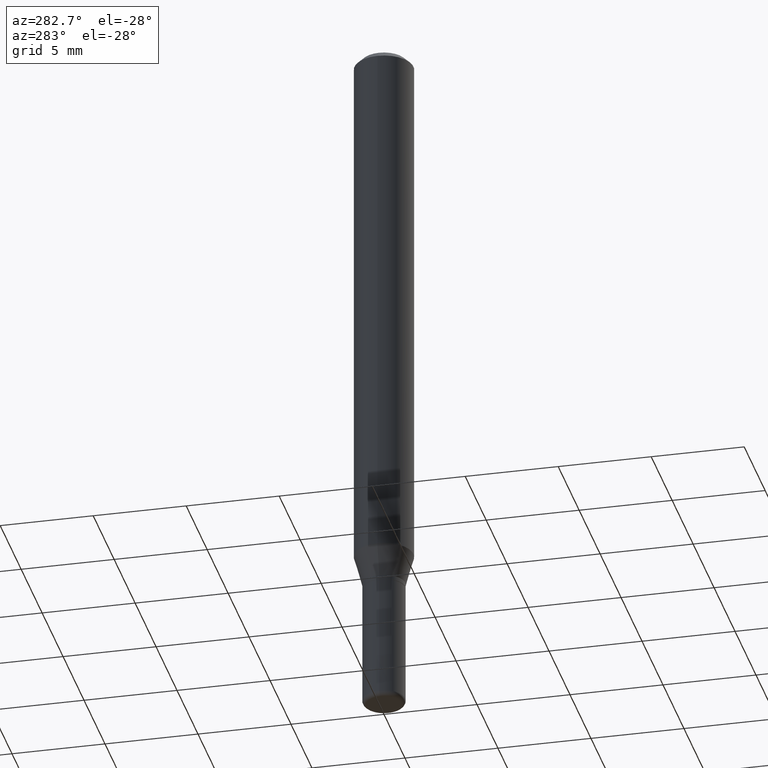
[diagram: clean part render]
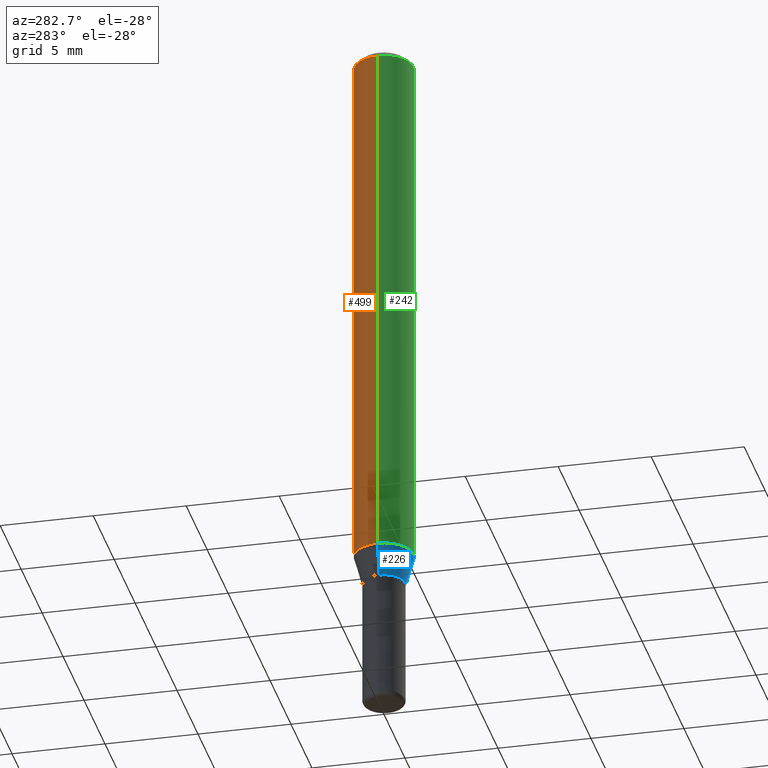
[diagram: same view with three faces highlighted in distinct colors, each labeled with its STEP entity id]
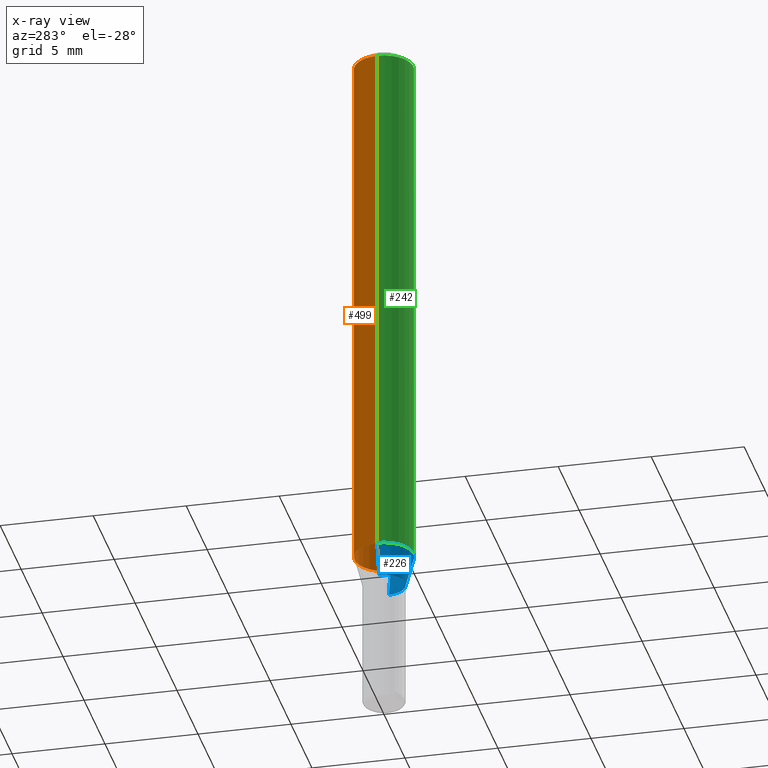
[diagram: x-ray of the same camera — body ghosted, the three highlighted faces saturated]
A machine part, auxiliary view with three faces highlighted in distinct colors.
The next image is the same camera in x-ray (body ghosted, the three faces saturated) — at least one of them is partly hidden behind the body in this view.
Their STEP definitions:

[orange] entity #499 — the highlighted cylindrical surface (edge-blend (fillet) strip) has radius 1.5875 mm, axis along (-0, 0, 1).
#22 = VECTOR ( 'NONE', #336, 39.37007874015748143 ) ;
#28 = EDGE_CURVE ( 'NONE', #52, #165, #150, .T. ) ;
#31 = DIRECTION ( 'NONE',  ( -2.445468806185136877E-29, 3.491481338843145188E-15, 1.000000000000000000 ) ) ;
#33 = ORIENTED_EDGE ( 'NONE', *, *, #28, .F. ) ;
#52 = VERTEX_POINT ( 'NONE', #235 ) ;
#55 = ORIENTED_EDGE ( 'NONE', *, *, #492, .T. ) ;
#76 = EDGE_CURVE ( 'NONE', #165, #403, #152, .T. ) ;
#77 = DIRECTION ( 'NONE',  ( 1.000000000000000000, -6.982962677686266711E-15, 0.000000000000000000 ) ) ;
#89 = EDGE_LOOP ( 'NONE', ( #55, #443, #262, #33 ) ) ;
#102 = CYLINDRICAL_SURFACE ( 'NONE', #343, 0.06250000000000000000 ) ;
#143 = DIRECTION ( 'NONE',  ( 1.000000000000000000, -6.982962677686270655E-15, 0.000000000000000000 ) ) ;
#144 = VECTOR ( 'NONE', #31, 39.37007874015748143 ) ;
#150 = LINE ( 'NONE', #465, #144 ) ;
#152 = CIRCLE ( 'NONE', #285, 0.06250000000000000000 ) ;
#165 = VERTEX_POINT ( 'NONE', #467 ) ;
#167 = CARTESIAN_POINT ( 'NONE',  ( 3.668203209277632395E-31, -5.237222008264614861E-17, -0.01499999999999970281 ) ) ;
#172 = CARTESIAN_POINT ( 'NONE',  ( -0.06250000000000000000, 4.440892098500626162E-16, -3.074334431409316114E-30 ) ) ;
#174 = VERTEX_POINT ( 'NONE', #353 ) ;
#182 = EDGE_CURVE ( 'NONE', #174, #403, #406, .T. ) ;
#235 = CARTESIAN_POINT ( 'NONE',  ( 0.06250000000000000000, -4.468010650114807348E-15, -1.154689110867544555 ) ) ;
#262 = ORIENTED_EDGE ( 'NONE', *, *, #76, .F. ) ;
#265 = CIRCLE ( 'NONE', #311, 0.06250000000000000000 ) ;
#272 = CARTESIAN_POINT ( 'NONE',  ( 2.823756201468231071E-29, -4.031575482759415678E-15, -1.154689110867544555 ) ) ;
#285 = AXIS2_PLACEMENT_3D ( 'NONE', #167, #516, #77 ) ;
#305 = DIRECTION ( 'NONE',  ( 1.000000000000000000, -6.982962677686266711E-15, 4.876176775795935793E-29 ) ) ;
#308 = DIRECTION ( 'NONE',  ( -2.445468806185136597E-29, 3.491481338843145583E-15, 1.000000000000000000 ) ) ;
#311 = AXIS2_PLACEMENT_3D ( 'NONE', #272, #350, #143 ) ;
#336 = DIRECTION ( 'NONE',  ( -2.445468806185136877E-29, 3.491481338843145188E-15, 1.000000000000000000 ) ) ;
#343 = AXIS2_PLACEMENT_3D ( 'NONE', #344, #308, #305 ) ;
#344 = CARTESIAN_POINT ( 'NONE',  ( 0.000000000000000000, 0.000000000000000000, 0.000000000000000000 ) ) ;
#350 = DIRECTION ( 'NONE',  ( -2.445468806185136597E-29, 3.491481338843145583E-15, 1.000000000000000000 ) ) ;
#353 = CARTESIAN_POINT ( 'NONE',  ( -0.06250000000000000000, -3.587486272909353851E-15, -1.154689110867544555 ) ) ;
#371 = CARTESIAN_POINT ( 'NONE',  ( -0.06250000000000000000, -1.597884641570968368E-15, -0.01499999999999970281 ) ) ;
#403 = VERTEX_POINT ( 'NONE', #371 ) ;
#406 = LINE ( 'NONE', #172, #22 ) ;
#443 = ORIENTED_EDGE ( 'NONE', *, *, #182, .T. ) ;
#465 = CARTESIAN_POINT ( 'NONE',  ( 0.06250000000000000000, -4.364351673553916694E-16, 3.047610484872459871E-30 ) ) ;
#467 = CARTESIAN_POINT ( 'NONE',  ( 0.06250000000000000000, -4.888073874380378612E-16, -0.01499999999999970281 ) ) ;
#491 = FACE_OUTER_BOUND ( 'NONE', #89, .T. ) ;
#492 = EDGE_CURVE ( 'NONE', #52, #174, #265, .T. ) ;
#499 = ADVANCED_FACE ( 'NONE', ( #491 ), #102, .T. ) ;
#516 = DIRECTION ( 'NONE',  ( -2.445468806185136597E-29, 3.491481338843145583E-15, 1.000000000000000000 ) ) ;

[blue] entity #226 — the highlighted conical surface has half-angle 15 deg.
#3 = DIRECTION ( 'NONE',  ( -2.445468806185136597E-29, 3.491481338843145583E-15, 1.000000000000000000 ) ) ;
#7 = EDGE_CURVE ( 'NONE', #174, #52, #346, .T. ) ;
#9 = EDGE_LOOP ( 'NONE', ( #332, #51, #209, #293 ) ) ;
#10 = LINE ( 'NONE', #335, #376 ) ;
#15 = AXIS2_PLACEMENT_3D ( 'NONE', #333, #481, #131 ) ;
#25 = VECTOR ( 'NONE', #307, 39.37007874015748854 ) ;
#51 = ORIENTED_EDGE ( 'NONE', *, *, #56, .T. ) ;
#52 = VERTEX_POINT ( 'NONE', #235 ) ;
#56 = EDGE_CURVE ( 'NONE', #334, #249, #115, .T. ) ;
#58 = AXIS2_PLACEMENT_3D ( 'NONE', #468, #291, #501 ) ;
#83 = CARTESIAN_POINT ( 'NONE',  ( 0.04499999999999995670, -4.573840553884519999E-15, -1.220000000000000195 ) ) ;
#115 = CIRCLE ( 'NONE', #117, 0.04499999999999995670 ) ;
#117 = AXIS2_PLACEMENT_3D ( 'NONE', #423, #3, #212 ) ;
#131 = DIRECTION ( 'NONE',  ( 1.000000000000000000, -6.982962677686275388E-15, 0.000000000000000000 ) ) ;
#174 = VERTEX_POINT ( 'NONE', #353 ) ;
#209 = ORIENTED_EDGE ( 'NONE', *, *, #515, .T. ) ;
#212 = DIRECTION ( 'NONE',  ( 1.000000000000000000, -6.982962677686275388E-15, 0.000000000000000000 ) ) ;
#226 = ADVANCED_FACE ( 'NONE', ( #298 ), #452, .T. ) ;
#235 = CARTESIAN_POINT ( 'NONE',  ( 0.06250000000000000000, -4.468010650114807348E-15, -1.154689110867544555 ) ) ;
#249 = VERTEX_POINT ( 'NONE', #83 ) ;
#268 = DIRECTION ( 'NONE',  ( -0.2588190451025207395, 5.211531920934546309E-15, 0.9659258262890682012 ) ) ;
#277 = CARTESIAN_POINT ( 'NONE',  ( 0.04499999999999995670, -4.573840553884519999E-15, -1.220000000000000195 ) ) ;
#291 = DIRECTION ( 'NONE',  ( -2.445468806185136597E-29, 3.491481338843145583E-15, 1.000000000000000000 ) ) ;
#293 = ORIENTED_EDGE ( 'NONE', *, *, #7, .F. ) ;
#298 = FACE_OUTER_BOUND ( 'NONE', #9, .T. ) ;
#307 = DIRECTION ( 'NONE',  ( 0.2588190451025207395, 1.565188264969626109E-15, 0.9659258262890682012 ) ) ;
#326 = CARTESIAN_POINT ( 'NONE',  ( -0.04499999999999995670, -3.763674637602973398E-15, -1.220000000000000195 ) ) ;
#332 = ORIENTED_EDGE ( 'NONE', *, *, #430, .F. ) ;
#333 = CARTESIAN_POINT ( 'NONE',  ( 2.983471943545866670E-29, -4.259607233388637524E-15, -1.220000000000000195 ) ) ;
#334 = VERTEX_POINT ( 'NONE', #326 ) ;
#335 = CARTESIAN_POINT ( 'NONE',  ( -0.04499999999999995670, -3.939863002296592945E-15, -1.220000000000000195 ) ) ;
#346 = CIRCLE ( 'NONE', #58, 0.06250000000000000000 ) ;
#353 = CARTESIAN_POINT ( 'NONE',  ( -0.06250000000000000000, -3.587486272909353851E-15, -1.154689110867544555 ) ) ;
#376 = VECTOR ( 'NONE', #268, 39.37007874015748854 ) ;
#381 = LINE ( 'NONE', #277, #25 ) ;
#423 = CARTESIAN_POINT ( 'NONE',  ( 2.983471943545866670E-29, -4.259607233388637524E-15, -1.220000000000000195 ) ) ;
#430 = EDGE_CURVE ( 'NONE', #334, #174, #10, .T. ) ;
#452 = CONICAL_SURFACE ( 'NONE', #15, 0.04499999999999995670, 0.2617993877991494633 ) ;
#468 = CARTESIAN_POINT ( 'NONE',  ( 2.823756201468231071E-29, -4.031575482759415678E-15, -1.154689110867544555 ) ) ;
#481 = DIRECTION ( 'NONE',  ( -2.445468806185136597E-29, 3.491481338843145583E-15, 1.000000000000000000 ) ) ;
#501 = DIRECTION ( 'NONE',  ( 1.000000000000000000, -6.982962677686270655E-15, 0.000000000000000000 ) ) ;
#515 = EDGE_CURVE ( 'NONE', #249, #52, #381, .T. ) ;

[green] entity #242 — the highlighted cylindrical surface (edge-blend (fillet) strip) has radius 1.5875 mm, axis along (-0, 0, 1).
#6 = CYLINDRICAL_SURFACE ( 'NONE', #254, 0.06250000000000000000 ) ;
#7 = EDGE_CURVE ( 'NONE', #174, #52, #346, .T. ) ;
#22 = VECTOR ( 'NONE', #336, 39.37007874015748143 ) ;
#28 = EDGE_CURVE ( 'NONE', #52, #165, #150, .T. ) ;
#31 = DIRECTION ( 'NONE',  ( -2.445468806185136877E-29, 3.491481338843145188E-15, 1.000000000000000000 ) ) ;
#50 = FACE_OUTER_BOUND ( 'NONE', #421, .T. ) ;
#52 = VERTEX_POINT ( 'NONE', #235 ) ;
#58 = AXIS2_PLACEMENT_3D ( 'NONE', #468, #291, #501 ) ;
#88 = ORIENTED_EDGE ( 'NONE', *, *, #182, .F. ) ;
#112 = DIRECTION ( 'NONE',  ( 1.000000000000000000, -6.982962677686266711E-15, 0.000000000000000000 ) ) ;
#144 = VECTOR ( 'NONE', #31, 39.37007874015748143 ) ;
#150 = LINE ( 'NONE', #465, #144 ) ;
#165 = VERTEX_POINT ( 'NONE', #467 ) ;
#172 = CARTESIAN_POINT ( 'NONE',  ( -0.06250000000000000000, 4.440892098500626162E-16, -3.074334431409316114E-30 ) ) ;
#174 = VERTEX_POINT ( 'NONE', #353 ) ;
#182 = EDGE_CURVE ( 'NONE', #174, #403, #406, .T. ) ;
#229 = EDGE_CURVE ( 'NONE', #403, #165, #300, .T. ) ;
#235 = CARTESIAN_POINT ( 'NONE',  ( 0.06250000000000000000, -4.468010650114807348E-15, -1.154689110867544555 ) ) ;
#242 = ADVANCED_FACE ( 'NONE', ( #50 ), #6, .T. ) ;
#254 = AXIS2_PLACEMENT_3D ( 'NONE', #442, #445, #517 ) ;
#273 = ORIENTED_EDGE ( 'NONE', *, *, #229, .F. ) ;
#291 = DIRECTION ( 'NONE',  ( -2.445468806185136597E-29, 3.491481338843145583E-15, 1.000000000000000000 ) ) ;
#300 = CIRCLE ( 'NONE', #361, 0.06250000000000000000 ) ;
#316 = DIRECTION ( 'NONE',  ( -2.445468806185136597E-29, 3.491481338843145583E-15, 1.000000000000000000 ) ) ;
#336 = DIRECTION ( 'NONE',  ( -2.445468806185136877E-29, 3.491481338843145188E-15, 1.000000000000000000 ) ) ;
#346 = CIRCLE ( 'NONE', #58, 0.06250000000000000000 ) ;
#353 = CARTESIAN_POINT ( 'NONE',  ( -0.06250000000000000000, -3.587486272909353851E-15, -1.154689110867544555 ) ) ;
#361 = AXIS2_PLACEMENT_3D ( 'NONE', #449, #316, #112 ) ;
#371 = CARTESIAN_POINT ( 'NONE',  ( -0.06250000000000000000, -1.597884641570968368E-15, -0.01499999999999970281 ) ) ;
#397 = ORIENTED_EDGE ( 'NONE', *, *, #28, .T. ) ;
#403 = VERTEX_POINT ( 'NONE', #371 ) ;
#406 = LINE ( 'NONE', #172, #22 ) ;
#421 = EDGE_LOOP ( 'NONE', ( #88, #509, #397, #273 ) ) ;
#442 = CARTESIAN_POINT ( 'NONE',  ( 0.000000000000000000, 0.000000000000000000, 0.000000000000000000 ) ) ;
#445 = DIRECTION ( 'NONE',  ( -2.445468806185136597E-29, 3.491481338843145583E-15, 1.000000000000000000 ) ) ;
#449 = CARTESIAN_POINT ( 'NONE',  ( 3.668203209277632395E-31, -5.237222008264614861E-17, -0.01499999999999970281 ) ) ;
#465 = CARTESIAN_POINT ( 'NONE',  ( 0.06250000000000000000, -4.364351673553916694E-16, 3.047610484872459871E-30 ) ) ;
#467 = CARTESIAN_POINT ( 'NONE',  ( 0.06250000000000000000, -4.888073874380378612E-16, -0.01499999999999970281 ) ) ;
#468 = CARTESIAN_POINT ( 'NONE',  ( 2.823756201468231071E-29, -4.031575482759415678E-15, -1.154689110867544555 ) ) ;
#501 = DIRECTION ( 'NONE',  ( 1.000000000000000000, -6.982962677686270655E-15, 0.000000000000000000 ) ) ;
#509 = ORIENTED_EDGE ( 'NONE', *, *, #7, .T. ) ;
#517 = DIRECTION ( 'NONE',  ( 1.000000000000000000, -6.982962677686266711E-15, 4.876176775795935793E-29 ) ) ;